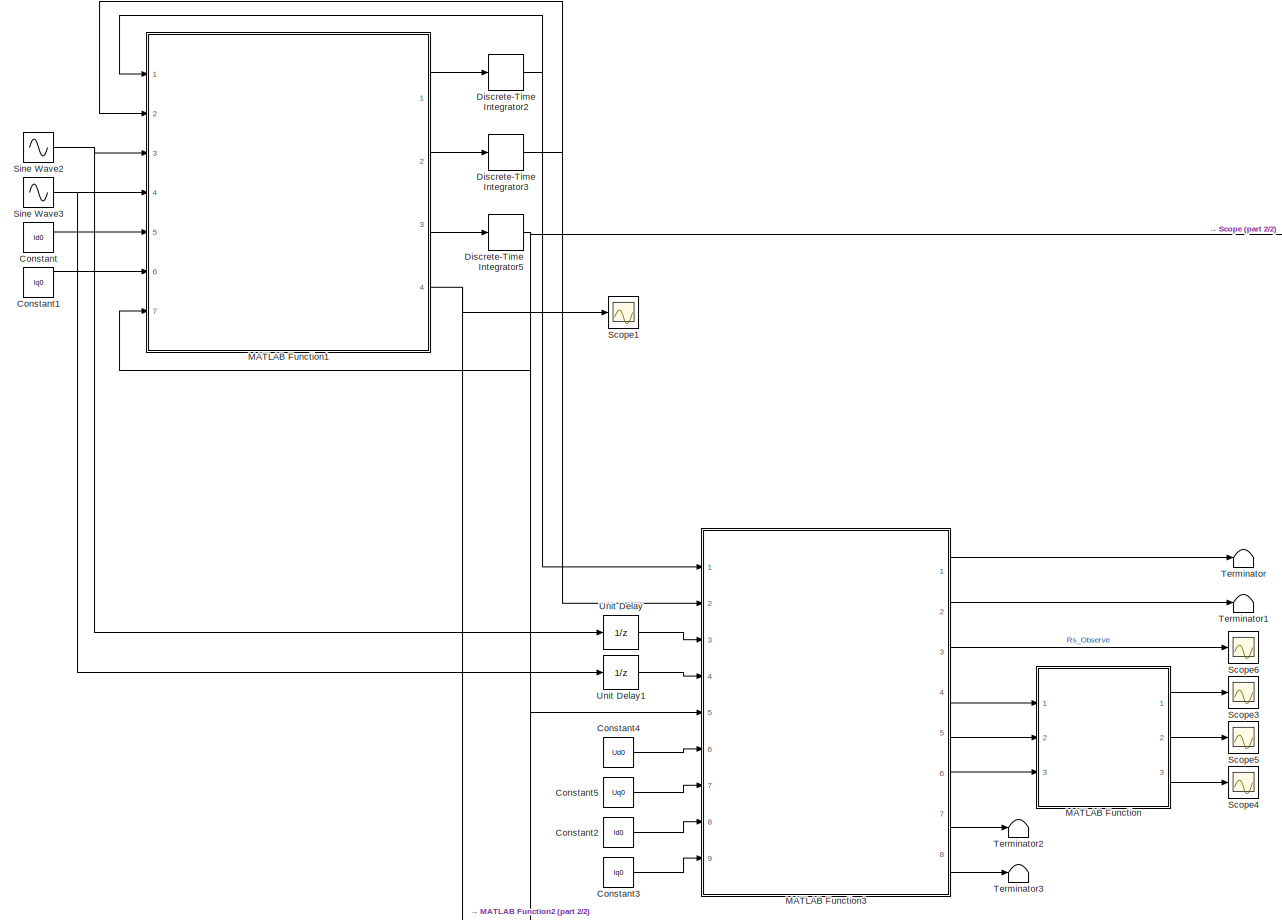
[diagram: root canvas - part 1/2, most of the canvas]
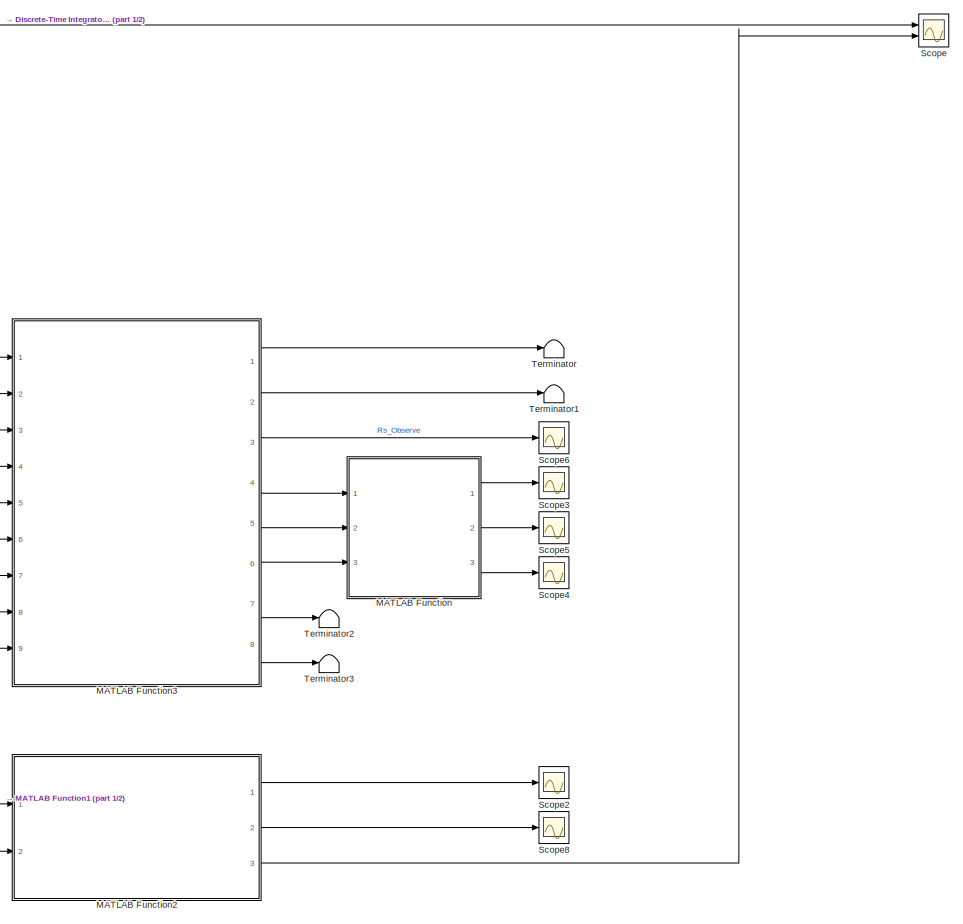
[diagram: root canvas - part 2/2, right side, full height]
MODEL slx_9b798b4a715d
KIND model
CONFIG AbsTol = auto
CONFIG EnableMultiTasking = off
CONFIG FixedStep = auto
CONFIG MaxStep = auto
CONFIG MinStep = auto
CONFIG RelTol = 1e-3
CONFIG SampleTimeConstraint = Unconstrained
CONFIG Solver = VariableStepAuto
CONFIG SolverName = VariableStepAuto
CONFIG StartTime = 0.0
CONFIG StopTime = 10.0
BLOCK [Constant] Constant
  SampleTime = -1
  Value = Id0
BLOCK [Constant] Constant1
  SampleTime = -1
  Value = Iq0
BLOCK [Constant] Constant2
  SampleTime = -1
  Value = Id0
BLOCK [Constant] Constant3
  SampleTime = -1
  Value = Iq0
BLOCK [Constant] Constant4
  SampleTime = -1
  Value = Ud0
BLOCK [Constant] Constant5
  SampleTime = -1
  Value = Uq0
BLOCK [DiscreteIntegrator] Discrete-Time Integrator2
  ICPrevOutput = DiscIntNeverNeededParam
  ICPrevScaledInput = DiscIntNeverNeededParam
  InitialConditionSetting = Auto
  Ports = [1, 1]
  SampleTime = Tsim
BLOCK [DiscreteIntegrator] Discrete-Time Integrator3
  ICPrevOutput = DiscIntNeverNeededParam
  ICPrevScaledInput = DiscIntNeverNeededParam
  InitialConditionSetting = Auto
  Ports = [1, 1]
  SampleTime = Tsim
BLOCK [DiscreteIntegrator] Discrete-Time Integrator5
  ICPrevOutput = DiscIntNeverNeededParam
  ICPrevScaledInput = DiscIntNeverNeededParam
  InitialConditionSetting = Auto
  Ports = [1, 1]
  SampleTime = Tsim
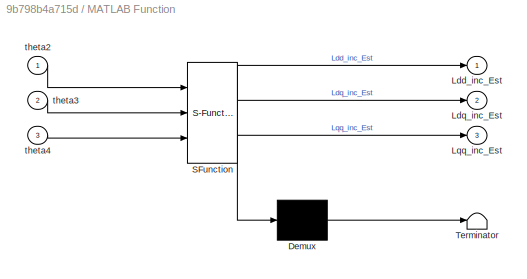
BLOCK [SubSystem] MATLAB Function
  ErrorFcn = Stateflow.Translate.translate
  PermitHierarchicalResolution = ExplicitOnly
  Ports = [3, 3]
  RequestExecContextInheritance = off
  SFBlockType = MATLAB Function
  TreatAsAtomicUnit = on
BLOCK [Demux] MATLAB Function/ Demux 
  Outputs = 1
  Ports = [1, 1]
BLOCK [S-Function] MATLAB Function/ SFunction 
  EnableBusSupport = on
  FunctionName = sf_sfun
  PortCounts = [3 4]
  Ports = [3, 4]
  SFcnIsStateOwnerBlock = off
  SFunctionDeploymentMode = off
  Tag = Stateflow S-Function 2
BLOCK [Terminator] MATLAB Function/ Terminator 
BLOCK [Outport] MATLAB Function/Ldd_inc_Est
  IconDisplay = Port number
BLOCK [Outport] MATLAB Function/Ldq_inc_Est
  IconDisplay = Port number
  Port = 2
BLOCK [Outport] MATLAB Function/Lqq_inc_Est
  IconDisplay = Port number
  Port = 3
BLOCK [Inport] MATLAB Function/theta2
  IconDisplay = Port number
BLOCK [Inport] MATLAB Function/theta3
  IconDisplay = Port number
  Port = 2
BLOCK [Inport] MATLAB Function/theta4
  IconDisplay = Port number
  Port = 3
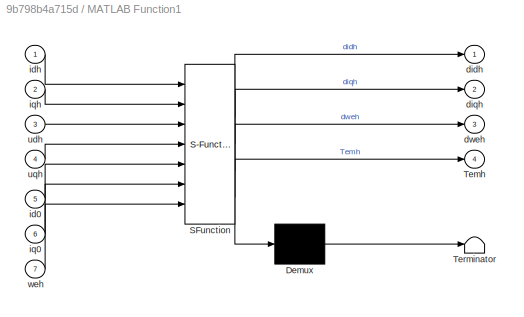
BLOCK [SubSystem] MATLAB Function1
  ErrorFcn = Stateflow.Translate.translate
  PermitHierarchicalResolution = ExplicitOnly
  Ports = [7, 4]
  RequestExecContextInheritance = off
  SFBlockType = MATLAB Function
  TreatAsAtomicUnit = on
BLOCK [Demux] MATLAB Function1/ Demux 
  Outputs = 1
  Ports = [1, 1]
BLOCK [S-Function] MATLAB Function1/ SFunction 
  EnableBusSupport = on
  FunctionName = sf_sfun
  Parameters = J,L_ap,L_inc,L_inc_inv,Ldd_inc,Ldq_inc,Lqq_inc,Psi_dm,Rs,damping,inertia,we0
  PortCounts = [7 5]
  Ports = [7, 5]
  SFcnIsStateOwnerBlock = off
  SFunctionDeploymentMode = off
  Tag = Stateflow S-Function 1
BLOCK [Terminator] MATLAB Function1/ Terminator 
BLOCK [Outport] MATLAB Function1/Temh
  IconDisplay = Port number
  Port = 4
BLOCK [Outport] MATLAB Function1/didh
  IconDisplay = Port number
BLOCK [Outport] MATLAB Function1/diqh
  IconDisplay = Port number
  Port = 2
BLOCK [Outport] MATLAB Function1/dweh
  IconDisplay = Port number
  Port = 3
BLOCK [Inport] MATLAB Function1/id0
  IconDisplay = Port number
  Port = 5
BLOCK [Inport] MATLAB Function1/idh
  IconDisplay = Port number
BLOCK [Inport] MATLAB Function1/iq0
  IconDisplay = Port number
  Port = 6
BLOCK [Inport] MATLAB Function1/iqh
  IconDisplay = Port number
  Port = 2
BLOCK [Inport] MATLAB Function1/udh
  IconDisplay = Port number
  Port = 3
BLOCK [Inport] MATLAB Function1/uqh
  IconDisplay = Port number
  Port = 4
BLOCK [Inport] MATLAB Function1/weh
  IconDisplay = Port number
  Port = 7
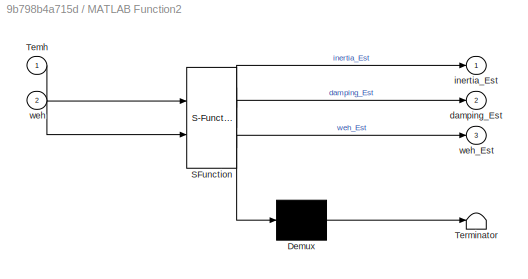
BLOCK [SubSystem] MATLAB Function2
  ErrorFcn = Stateflow.Translate.translate
  PermitHierarchicalResolution = ExplicitOnly
  Ports = [2, 3]
  RequestExecContextInheritance = off
  SFBlockType = MATLAB Function
  SystemSampleTime = Tob
  TreatAsAtomicUnit = on
BLOCK [Demux] MATLAB Function2/ Demux 
  Outputs = 1
  Ports = [1, 1]
BLOCK [S-Function] MATLAB Function2/ SFunction 
  EnableBusSupport = on
  FunctionName = sf_sfun
  Parameters = K_damping,K_inertia,Tob,damping,inertia,initial_percentage
  PortCounts = [2 4]
  Ports = [2, 4]
  SFcnIsStateOwnerBlock = off
  SFunctionDeploymentMode = off
  Tag = Stateflow S-Function 3
BLOCK [Terminator] MATLAB Function2/ Terminator 
BLOCK [Inport] MATLAB Function2/Temh
  IconDisplay = Port number
BLOCK [Outport] MATLAB Function2/damping_Est
  IconDisplay = Port number
  Port = 2
BLOCK [Outport] MATLAB Function2/inertia_Est
  IconDisplay = Port number
BLOCK [Inport] MATLAB Function2/weh
  IconDisplay = Port number
  Port = 2
BLOCK [Outport] MATLAB Function2/weh_Est
  IconDisplay = Port number
  Port = 3
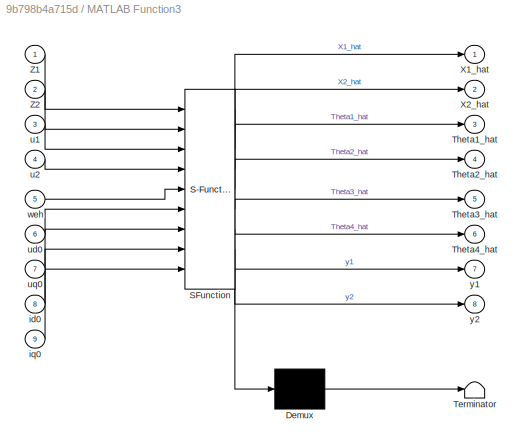
BLOCK [SubSystem] MATLAB Function3
  ErrorFcn = Stateflow.Translate.translate
  PermitHierarchicalResolution = ExplicitOnly
  Ports = [9, 8]
  RequestExecContextInheritance = off
  SFBlockType = MATLAB Function
  SystemSampleTime = Tob
  TreatAsAtomicUnit = on
BLOCK [Demux] MATLAB Function3/ Demux 
  Outputs = 1
  Ports = [1, 1]
BLOCK [S-Function] MATLAB Function3/ SFunction 
  EnableBusSupport = on
  FunctionName = sf_sfun
  Parameters = L_inc_inv,Qp,Qx,R,Rs,Tob,initial_percentage,we0
  PortCounts = [9 9]
  Ports = [9, 9]
  SFcnIsStateOwnerBlock = off
  SFunctionDeploymentMode = off
  Tag = Stateflow S-Function 4
BLOCK [Terminator] MATLAB Function3/ Terminator 
BLOCK [Outport] MATLAB Function3/Theta1_hat
  IconDisplay = Port number
  Port = 3
BLOCK [Outport] MATLAB Function3/Theta2_hat
  IconDisplay = Port number
  Port = 4
BLOCK [Outport] MATLAB Function3/Theta3_hat
  IconDisplay = Port number
  Port = 5
BLOCK [Outport] MATLAB Function3/Theta4_hat
  IconDisplay = Port number
  Port = 6
BLOCK [Outport] MATLAB Function3/X1_hat
  IconDisplay = Port number
BLOCK [Outport] MATLAB Function3/X2_hat
  IconDisplay = Port number
  Port = 2
BLOCK [Inport] MATLAB Function3/Z1
  IconDisplay = Port number
BLOCK [Inport] MATLAB Function3/Z2
  IconDisplay = Port number
  Port = 2
BLOCK [Inport] MATLAB Function3/id0
  IconDisplay = Port number
  Port = 8
BLOCK [Inport] MATLAB Function3/iq0
  IconDisplay = Port number
  Port = 9
BLOCK [Inport] MATLAB Function3/u1
  IconDisplay = Port number
  Port = 3
BLOCK [Inport] MATLAB Function3/u2
  IconDisplay = Port number
  Port = 4
BLOCK [Inport] MATLAB Function3/ud0
  IconDisplay = Port number
  Port = 6
BLOCK [Inport] MATLAB Function3/uq0
  IconDisplay = Port number
  Port = 7
BLOCK [Inport] MATLAB Function3/weh
  IconDisplay = Port number
  Port = 5
BLOCK [Outport] MATLAB Function3/y1
  IconDisplay = Port number
  Port = 7
BLOCK [Outport] MATLAB Function3/y2
  IconDisplay = Port number
  Port = 8
BLOCK [Scope] Scope
  Floating = off
  NumInputPorts = 2
  Ports = [2]
  ScopeSpecificationString = Simulink.scopes.TimeScopeBlockCfg('CurrentConfiguration', extmgr.ConfigurationSet(extmgr.Configuration('Core','General UI',true),extmgr.Configuration('Core','Source UI',true),extmgr.Configuration('Sources','WiredSimulink',true),extmgr.Configuration('Visuals','Time Domain',true,'SerializedDisplays',{struct('MinYLimReal','-7.96413','MaxYLimReal','6.81157','YLabelReal','','MinYLimMag','0.00000','MaxY...<+1467ch>
BLOCK [Scope] Scope1
  Floating = off
  NumInputPorts = 1
  Ports = [1]
  ScopeSpecificationString = Simulink.scopes.TimeScopeBlockCfg('CurrentConfiguration', extmgr.ConfigurationSet(extmgr.Configuration('Core','General UI',true),extmgr.Configuration('Core','Source UI',true),extmgr.Configuration('Sources','WiredSimulink',true,'DataLoggingVariableName','ScopeData1'),extmgr.Configuration('Visuals','Time Domain',true,'SerializedDisplays',{struct('MinYLimReal','-7.6634','MaxYLimReal','9.11847','YLabe...<+1422ch>
BLOCK [Scope] Scope2
  Floating = off
  NumInputPorts = 1
  Ports = [1]
  ScopeSpecificationString = Simulink.scopes.TimeScopeBlockCfg('CurrentConfiguration', extmgr.ConfigurationSet(extmgr.Configuration('Core','General UI',true),extmgr.Configuration('Core','Source UI',true),extmgr.Configuration('Sources','WiredSimulink',true,'DataLoggingVariableName','Inertia_Est','DataLogging',true),extmgr.Configuration('Visuals','Time Domain',true,'SerializedDisplays',{struct('MinYLimReal','-0.00022','MaxYLimR...<+1477ch>
BLOCK [Scope] Scope3
  Floating = off
  NumInputPorts = 1
  Ports = [1]
  ScopeSpecificationString = Simulink.scopes.TimeScopeBlockCfg('CurrentConfiguration', extmgr.ConfigurationSet(extmgr.Configuration('Core','General UI',true),extmgr.Configuration('Core','Source UI',true),extmgr.Configuration('Sources','WiredSimulink',true,'DataLoggingVariableName','Ldd_Est','DataLogging',true),extmgr.Configuration('Visuals','Time Domain',true,'SerializedDisplays',{struct('MinYLimReal','-0.000001','MaxYLimReal...<+1454ch>
BLOCK [Scope] Scope4
  Floating = off
  NumInputPorts = 1
  Ports = [1]
  ScopeSpecificationString = Simulink.scopes.TimeScopeBlockCfg('CurrentConfiguration', extmgr.ConfigurationSet(extmgr.Configuration('Core','General UI',true),extmgr.Configuration('Core','Source UI',true),extmgr.Configuration('Sources','WiredSimulink',true,'DataLoggingVariableName','Lqq_Est','DataLogging',true),extmgr.Configuration('Visuals','Time Domain',true,'SerializedDisplays',{struct('MinYLimReal','0.000181','MaxYLimReal'...<+1452ch>
BLOCK [Scope] Scope5
  Floating = off
  NumInputPorts = 1
  Ports = [1]
  ScopeSpecificationString = Simulink.scopes.TimeScopeBlockCfg('CurrentConfiguration', extmgr.ConfigurationSet(extmgr.Configuration('Core','General UI',true),extmgr.Configuration('Core','Source UI',true),extmgr.Configuration('Sources','WiredSimulink',true,'DataLoggingVariableName','Ldq_Est','DataLogging',true),extmgr.Configuration('Visuals','Time Domain',true,'SerializedDisplays',{struct('MinYLimReal','-0.000026','MaxYLimReal...<+1454ch>
BLOCK [Scope] Scope6
  Floating = off
  NumInputPorts = 1
  Ports = [1]
  ScopeSpecificationString = Simulink.scopes.TimeScopeBlockCfg('CurrentConfiguration', extmgr.ConfigurationSet(extmgr.Configuration('Core','General UI',true),extmgr.Configuration('Core','Source UI',true),extmgr.Configuration('Sources','WiredSimulink',true,'DataLoggingVariableName','Rs_Est','DataLogging',true),extmgr.Configuration('Visuals','Time Domain',true,'SerializedDisplays',{struct('MinYLimReal','-0.05421','MaxYLimReal',...<+1428ch>
BLOCK [Scope] Scope8
  Floating = off
  NumInputPorts = 1
  Ports = [1]
  ScopeSpecificationString = Simulink.scopes.TimeScopeBlockCfg('CurrentConfiguration', extmgr.ConfigurationSet(extmgr.Configuration('Core','General UI',true),extmgr.Configuration('Core','Source UI',true),extmgr.Configuration('Sources','WiredSimulink',true,'DataLoggingVariableName','Damping_Est','DataLogging',true),extmgr.Configuration('Visuals','Time Domain',true,'SerializedDisplays',{struct('MinYLimReal','-0.46202','MaxYLimR...<+1477ch>
BLOCK [Sin] Sine Wave2
  Amplitude = Umd
  Frequency = weh
  Ports = [0, 1]
  SampleTime = Tsim
BLOCK [Sin] Sine Wave3
  Amplitude = Umq
  Frequency = weh
  Phase = pi/2
  Ports = [0, 1]
  SampleTime = Tsim
BLOCK [Terminator] Terminator
BLOCK [Terminator] Terminator1
BLOCK [Terminator] Terminator2
BLOCK [Terminator] Terminator3
BLOCK [UnitDelay] Unit Delay
  HasFrameUpgradeWarning = on
  SampleTime = Tob
BLOCK [UnitDelay] Unit Delay1
  HasFrameUpgradeWarning = on
  SampleTime = Tob
LINE Constant1:1 -> MATLAB Function1:6
LINE Constant2:1 -> MATLAB Function3:8
LINE Constant3:1 -> MATLAB Function3:9
LINE Constant4:1 -> MATLAB Function3:6
LINE Constant5:1 -> MATLAB Function3:7
LINE Constant:1 -> MATLAB Function1:5
NET Discrete-Time Integrator2:1 -> MATLAB Function1:1, MATLAB Function3:1
NET Discrete-Time Integrator3:1 -> MATLAB Function1:2, MATLAB Function3:2
NET Discrete-Time Integrator5:1 -> MATLAB Function1:7, MATLAB Function2:2, MATLAB Function3:5, Scope:1
LINE MATLAB Function1:1 -> Discrete-Time Integrator2:1
LINE MATLAB Function1:2 -> Discrete-Time Integrator3:1
LINE MATLAB Function1:3 -> Discrete-Time Integrator5:1
NET MATLAB Function1:4 -> MATLAB Function2:1, Scope1:1
LINE MATLAB Function2:1 -> Scope2:1
LINE MATLAB Function2:2 -> Scope8:1
LINE MATLAB Function2:3 -> Scope:2
LINE MATLAB Function3:1 -> Terminator:1
LINE MATLAB Function3:2 -> Terminator1:1
LINE MATLAB Function3:3 -> Scope6:1
LINE MATLAB Function3:4 -> MATLAB Function:1
LINE MATLAB Function3:5 -> MATLAB Function:2
LINE MATLAB Function3:6 -> MATLAB Function:3
LINE MATLAB Function3:7 -> Terminator2:1
LINE MATLAB Function3:8 -> Terminator3:1
LINE MATLAB Function:1 -> Scope3:1
LINE MATLAB Function:2 -> Scope5:1
LINE MATLAB Function:3 -> Scope4:1
NET Sine Wave2:1 -> MATLAB Function1:3, Unit Delay:1
NET Sine Wave3:1 -> MATLAB Function1:4, Unit Delay1:1
LINE Unit Delay1:1 -> MATLAB Function3:4
LINE Unit Delay:1 -> MATLAB Function3:3
note: NET lines group one-source signal fan-out (src -> all destinations, sorted); 1:1 wires keep LINE
CHART MATLAB Function1 states=1 transitions=1
  STATE_LABEL 'eML_blk_kernel()'
  STATE_LABEL 'SCRIPT:\nfunction [didh,diqh,dweh,Temh] = PMSMSmallSignalModelANDFundamentalMode(idh,iqh,udh,uqh,id0,iq0,weh, L_inc, L_inc_inv, L_ap, we0, inertia, damping, Rs, Psi_dm, J, Ldd_inc, Ldq_inc, Lqq_inc)\nih = [idh;iqh];\nuh = [udh;uqh];\nPsi0 = L_ap * [id0;iq0] + [Psi_dm;0;];\ndih = L_inc_inv * (uh - Rs * ih - we0 * J * L_inc * ih - weh * J * Psi0);\ndidh = dih(1,1);\ndiqh = dih(2,1);\n\nP = 4; %pole pairs\nPsi...<+206ch>'
CHART MATLAB Function states=1 transitions=1
  STATE_LABEL 'eML_blk_kernel()'
  STATE_LABEL 'SCRIPT:\nfunction [Ldd_inc_Est, Ldq_inc_Est, Lqq_inc_Est] = L_inc_invANDSat(theta2,theta3,theta4)\nL_inc_inv = [theta2, theta3; theta3  theta4];\nL_inc = L_inc_inv ^ -1;\nLdd_inc_Est = L_inc(1,1);\nLdq_inc_Est = -L_inc(2,1);\nLqq_inc_Est = L_inc(2,2);\n'
CHART MATLAB Function2 states=1 transitions=1
  STATE_LABEL 'eML_blk_kernel()'
  STATE_LABEL 'SCRIPT:\nfunction [inertia_Est,damping_Est,weh_Est] = MechanicalOb(Temh,weh, inertia, damping, Tob, K_inertia, K_damping, initial_percentage)\npersistent weh_hat inertia_hat damping_hat\nif isempty(weh_hat)\n    weh_hat = 0;\n    inertia_hat = inertia * initial_percentage;\n    damping_hat = damping * initial_percentage;\nend\nweh_tilde = weh_hat - weh;\nweh_hat_dot = (1/inertia_hat) * (Temh - damping_hat ...<+301ch>'
CHART MATLAB Function3 states=1 transitions=1
  STATE_LABEL 'eML_blk_kernel()'
  STATE_LABEL 'SCRIPT:\nfunction [X1_hat,X2_hat,Theta1_hat,Theta2_hat,Theta3_hat,Theta4_hat,y1,y2] = EKF_ParameterObserver(Z1,Z2,u1,u2, weh, ud0, uq0, id0, iq0 ,Tob,Qp,Qx,R,we0, L_inc_inv, Rs, initial_percentage)\npersistent X_hat Theta_hat P_Theta_hat P_X_hat;\nif isempty(X_hat)\n    X_hat = [0;0];\nend\nif isempty(Theta_hat)\n    Theta_hat = (1/initial_percentage) * [Rs;L_inc_inv(1,1);-L_inc_inv(2,1);L_inc_inv(2,2)] ...<+3022ch>'
